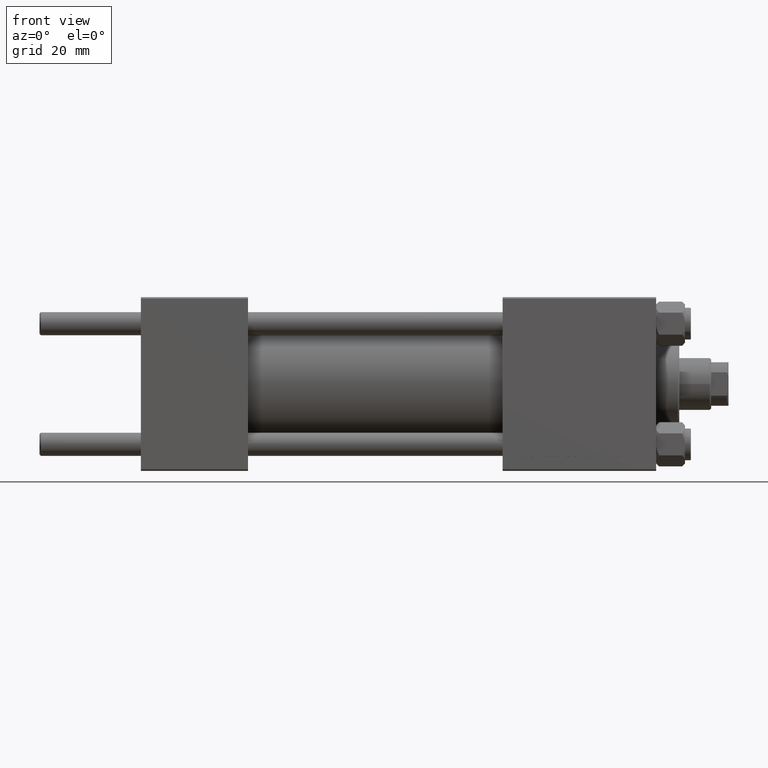
[diagram: clean part render]
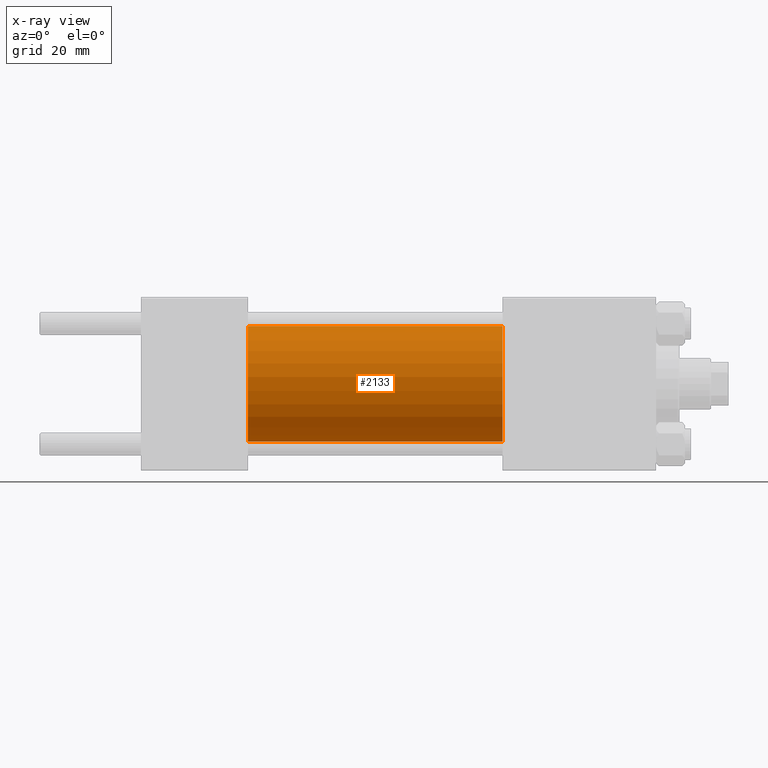
[diagram: x-ray — body ghosted, one internal face saturated and labeled with its STEP entity id]
A machine part, front view, then the same camera in x-ray: the body is ghosted and one INTERNAL B-rep face — a face not visible from any outside direction — is saturated and labeled: STEP entity #2133.
In plain terms, the highlighted cylindrical surface (partial cylindrical patch) has radius 20 mm, axis along (-1, -0, -0).
Its self-contained STEP definition (entity closure, byte-faithful):
#266 = AXIS2_PLACEMENT_3D ( 'NONE', #7234, #30674, #26900 ) ;
#465 = EDGE_LOOP ( 'NONE', ( #31017, #9451, #20808, #31286 ) ) ;
#971 = DIRECTION ( 'NONE',  ( 0.000000000000000000, 0.000000000000000000, 1.000000000000000000 ) ) ;
#1060 = CARTESIAN_POINT ( 'NONE',  ( 125.0000000000000000, 2.449293598294706513E-15, -20.00000000000000000 ) ) ;
#2133 = ADVANCED_FACE ( 'NONE', ( #43575 ), #24174, .F. ) ;
#3289 = EDGE_CURVE ( 'NONE', #47564, #12793, #43750, .T. ) ;
#7234 = CARTESIAN_POINT ( 'NONE',  ( 37.00000000000000000, 0.000000000000000000, 0.000000000000000000 ) ) ;
#8408 = EDGE_CURVE ( 'NONE', #44634, #12793, #41055, .T. ) ;
#9451 = ORIENTED_EDGE ( 'NONE', *, *, #8408, .T. ) ;
#11283 = CARTESIAN_POINT ( 'NONE',  ( 125.0000000000000000, 0.000000000000000000, 0.000000000000000000 ) ) ;
#12062 = DIRECTION ( 'NONE',  ( -1.000000000000000000, -0.000000000000000000, -0.000000000000000000 ) ) ;
#12793 = VERTEX_POINT ( 'NONE', #44100 ) ;
#13935 = AXIS2_PLACEMENT_3D ( 'NONE', #35008, #12062, #971 ) ;
#14036 = LINE ( 'NONE', #34632, #23997 ) ;
#14463 = CARTESIAN_POINT ( 'NONE',  ( 125.0000000000000000, 0.000000000000000000, 20.00000000000000000 ) ) ;
#16593 = CARTESIAN_POINT ( 'NONE',  ( 37.00000000000000000, 0.000000000000000000, 20.00000000000000000 ) ) ;
#18184 = EDGE_CURVE ( 'NONE', #21848, #47564, #14036, .T. ) ;
#20808 = ORIENTED_EDGE ( 'NONE', *, *, #3289, .F. ) ;
#21848 = VERTEX_POINT ( 'NONE', #14463 ) ;
#22883 = DIRECTION ( 'NONE',  ( 1.000000000000000000, 0.000000000000000000, 0.000000000000000000 ) ) ;
#23997 = VECTOR ( 'NONE', #27081, 1000.000000000000000 ) ;
#24117 = AXIS2_PLACEMENT_3D ( 'NONE', #11283, #22883, #38270 ) ;
#24174 = CYLINDRICAL_SURFACE ( 'NONE', #13935, 20.00000000000000000 ) ;
#25716 = CIRCLE ( 'NONE', #24117, 20.00000000000000000 ) ;
#26900 = DIRECTION ( 'NONE',  ( 0.000000000000000000, 0.000000000000000000, -1.000000000000000000 ) ) ;
#27081 = DIRECTION ( 'NONE',  ( -1.000000000000000000, -0.000000000000000000, -0.000000000000000000 ) ) ;
#30674 = DIRECTION ( 'NONE',  ( 1.000000000000000000, 0.000000000000000000, 0.000000000000000000 ) ) ;
#31017 = ORIENTED_EDGE ( 'NONE', *, *, #37822, .T. ) ;
#31286 = ORIENTED_EDGE ( 'NONE', *, *, #18184, .F. ) ;
#32986 = DIRECTION ( 'NONE',  ( -1.000000000000000000, -0.000000000000000000, -0.000000000000000000 ) ) ;
#34632 = CARTESIAN_POINT ( 'NONE',  ( 125.0000000000000000, 0.000000000000000000, 20.00000000000000000 ) ) ;
#35008 = CARTESIAN_POINT ( 'NONE',  ( 125.0000000000000000, 0.000000000000000000, 0.000000000000000000 ) ) ;
#37822 = EDGE_CURVE ( 'NONE', #21848, #44634, #25716, .T. ) ;
#38270 = DIRECTION ( 'NONE',  ( 0.000000000000000000, 0.000000000000000000, -1.000000000000000000 ) ) ;
#40590 = VECTOR ( 'NONE', #32986, 1000.000000000000000 ) ;
#41055 = LINE ( 'NONE', #45316, #40590 ) ;
#43575 = FACE_OUTER_BOUND ( 'NONE', #465, .T. ) ;
#43750 = CIRCLE ( 'NONE', #266, 20.00000000000000000 ) ;
#44100 = CARTESIAN_POINT ( 'NONE',  ( 37.00000000000000000, 2.449293598294706513E-15, -20.00000000000000000 ) ) ;
#44634 = VERTEX_POINT ( 'NONE', #1060 ) ;
#45316 = CARTESIAN_POINT ( 'NONE',  ( 125.0000000000000000, 2.449293598294706513E-15, -20.00000000000000000 ) ) ;
#47564 = VERTEX_POINT ( 'NONE', #16593 ) ;